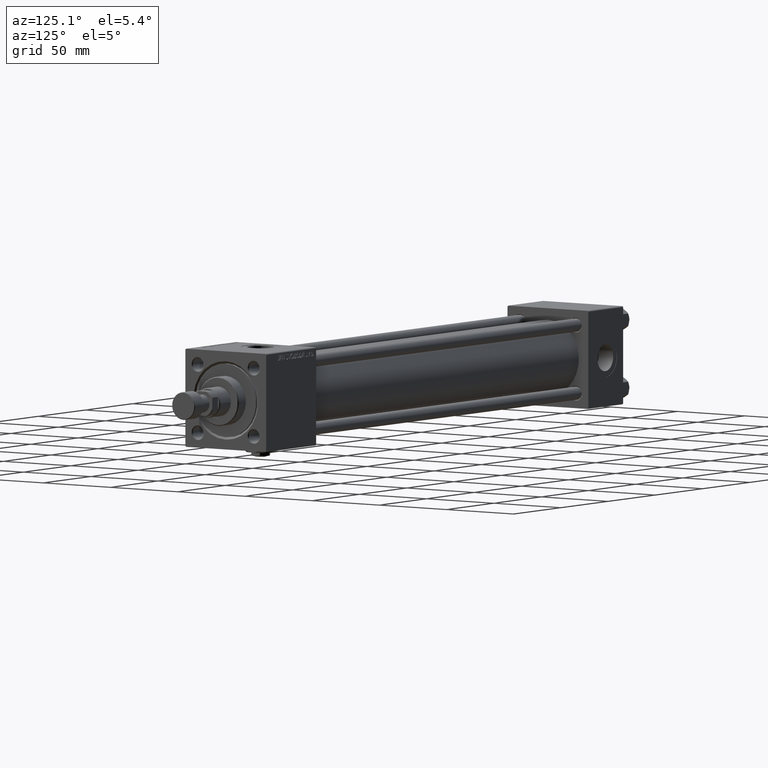
[diagram: clean part render]
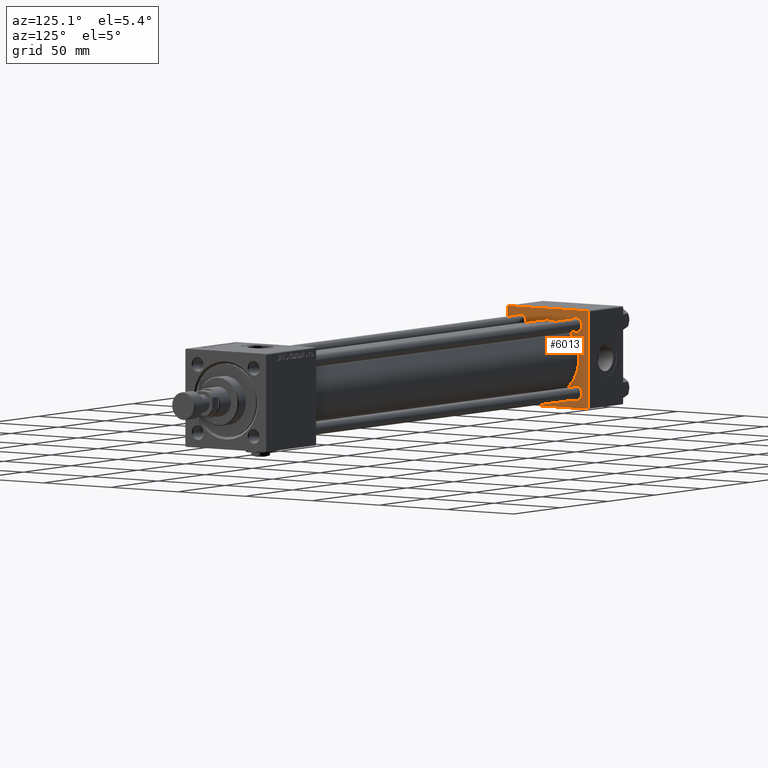
[diagram: same view with one face highlighted and labeled with its STEP entity id]
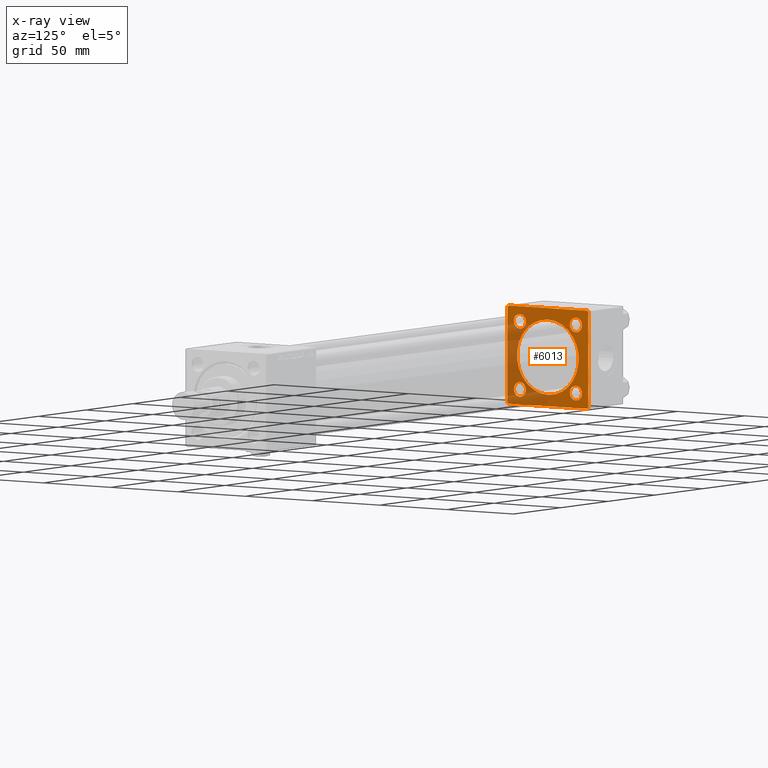
[diagram: x-ray of the same camera — body ghosted, the highlighted face saturated]
A machine part, auxiliary view. The second image highlights one B-rep face of the part: STEP entity #6013.
The next image is the same camera in x-ray: the body ghosted, the highlighted face saturated — about 35% of this face is hidden behind the body in this view.
In plain terms, the highlighted planar face has unit normal (-1, 0, 0).
Its self-contained STEP definition (entity closure, byte-faithful):
#444 = DIRECTION ( 'NONE',  ( -1.000000000000000000, 0.000000000000000000, -0.000000000000000000 ) ) ;
#1006 = AXIS2_PLACEMENT_3D ( 'NONE', #20738, #32433, #48664 ) ;
#1027 = CARTESIAN_POINT ( 'NONE',  ( 37.00000000000000000, -20.84999999999999076, -16.35000000000000142 ) ) ;
#1217 = DIRECTION ( 'NONE',  ( 0.000000000000000000, 0.000000000000000000, 1.000000000000000000 ) ) ;
#1560 = AXIS2_PLACEMENT_3D ( 'NONE', #46065, #18406, #42341 ) ;
#1715 = PLANE ( 'NONE',  #30529 ) ;
#2148 = DIRECTION ( 'NONE',  ( 0.000000000000000000, 0.000000000000000000, 1.000000000000000000 ) ) ;
#2371 = DIRECTION ( 'NONE',  ( -1.000000000000000000, 0.000000000000000000, -0.000000000000000000 ) ) ;
#2449 = CARTESIAN_POINT ( 'NONE',  ( 36.99999999999997868, -2.602085213965210642E-15, 0.000000000000000000 ) ) ;
#2518 = ORIENTED_EDGE ( 'NONE', *, *, #13555, .T. ) ;
#3679 = ORIENTED_EDGE ( 'NONE', *, *, #8488, .T. ) ;
#4054 = CARTESIAN_POINT ( 'NONE',  ( 37.00000000000000000, 29.49999999999997868, -30.00000000000000000 ) ) ;
#4358 = AXIS2_PLACEMENT_3D ( 'NONE', #45398, #444, #1217 ) ;
#5009 = EDGE_LOOP ( 'NONE', ( #19973, #28141 ) ) ;
#5206 = DIRECTION ( 'NONE',  ( 0.000000000000000000, 0.7071067811865474617, -0.7071067811865474617 ) ) ;
#5306 = VECTOR ( 'NONE', #11706, 1000.000000000000000 ) ;
#5619 = DIRECTION ( 'NONE',  ( -1.000000000000000000, 0.000000000000000000, -0.000000000000000000 ) ) ;
#5991 = ORIENTED_EDGE ( 'NONE', *, *, #33801, .T. ) ;
#6008 = DIRECTION ( 'NONE',  ( 0.000000000000000000, -1.000000000000000000, -1.156482317317871725E-16 ) ) ;
#6013 = ADVANCED_FACE ( 'NONE', ( #33916, #31415, #39373, #35400, #25667, #50416 ), #1715, .F. ) ;
#6106 = CARTESIAN_POINT ( 'NONE',  ( 37.00000000000000000, -20.84999999999999076, 20.85000000000000497 ) ) ;
#6268 = CARTESIAN_POINT ( 'NONE',  ( 37.00000000000000000, 29.99999999999999289, 30.00000000000000000 ) ) ;
#6903 = CARTESIAN_POINT ( 'NONE',  ( 37.00000000000000000, -30.00000000000000000, 29.49999999999999289 ) ) ;
#6919 = CIRCLE ( 'NONE', #32444, 23.00000000000000000 ) ;
#6966 = DIRECTION ( 'NONE',  ( -1.000000000000000000, 0.000000000000000000, -0.000000000000000000 ) ) ;
#7194 = CARTESIAN_POINT ( 'NONE',  ( 37.00000000000000000, -30.00000000000000000, 29.99999999999999289 ) ) ;
#7414 = EDGE_LOOP ( 'NONE', ( #26632, #36886 ) ) ;
#7709 = CIRCLE ( 'NONE', #4358, 4.500000000000003553 ) ;
#8299 = DIRECTION ( 'NONE',  ( 0.000000000000000000, -0.7071067811865474617, 0.7071067811865474617 ) ) ;
#8449 = ORIENTED_EDGE ( 'NONE', *, *, #39105, .T. ) ;
#8488 = EDGE_CURVE ( 'NONE', #14433, #33870, #22108, .T. ) ;
#8612 = AXIS2_PLACEMENT_3D ( 'NONE', #39142, #6966, #30665 ) ;
#9004 = ORIENTED_EDGE ( 'NONE', *, *, #22040, .T. ) ;
#9707 = DIRECTION ( 'NONE',  ( -0.000000000000000000, 0.000000000000000000, 1.000000000000000000 ) ) ;
#10103 = DIRECTION ( 'NONE',  ( 0.000000000000000000, 0.000000000000000000, -1.000000000000000000 ) ) ;
#10207 = AXIS2_PLACEMENT_3D ( 'NONE', #22382, #5619, #2148 ) ;
#10376 = EDGE_CURVE ( 'NONE', #32025, #13772, #45530, .T. ) ;
#10389 = CIRCLE ( 'NONE', #16342, 4.500000000000003553 ) ;
#10609 = EDGE_CURVE ( 'NONE', #30649, #16083, #7709, .T. ) ;
#10693 = DIRECTION ( 'NONE',  ( 1.000000000000000000, -0.000000000000000000, 0.000000000000000000 ) ) ;
#10907 = DIRECTION ( 'NONE',  ( 0.000000000000000000, 0.000000000000000000, 1.000000000000000000 ) ) ;
#11095 = DIRECTION ( 'NONE',  ( 0.000000000000000000, 0.000000000000000000, 1.000000000000000000 ) ) ;
#11169 = DIRECTION ( 'NONE',  ( -1.000000000000000000, 0.000000000000000000, -0.000000000000000000 ) ) ;
#11560 = EDGE_CURVE ( 'NONE', #18142, #21169, #37554, .T. ) ;
#11706 = DIRECTION ( 'NONE',  ( 0.000000000000000000, 0.000000000000000000, -1.000000000000000000 ) ) ;
#11968 = LINE ( 'NONE', #7194, #5306 ) ;
#12007 = VECTOR ( 'NONE', #5206, 1000.000000000000114 ) ;
#12275 = DIRECTION ( 'NONE',  ( 0.000000000000000000, -1.000000000000000000, -1.156482317317871725E-16 ) ) ;
#12541 = ORIENTED_EDGE ( 'NONE', *, *, #28233, .T. ) ;
#12821 = CARTESIAN_POINT ( 'NONE',  ( 37.00000000000000000, -30.00000000000000000, -29.50000000000001776 ) ) ;
#12904 = EDGE_CURVE ( 'NONE', #20232, #32478, #10389, .T. ) ;
#13323 = DIRECTION ( 'NONE',  ( -0.000000000000000000, 0.7071067811865574537, 0.7071067811865376918 ) ) ;
#13555 = EDGE_CURVE ( 'NONE', #18826, #31233, #11968, .T. ) ;
#13772 = VERTEX_POINT ( 'NONE', #26582 ) ;
#13788 = EDGE_LOOP ( 'NONE', ( #28900, #3679 ) ) ;
#14271 = CARTESIAN_POINT ( 'NONE',  ( 37.00000000000000000, -20.84999999999999076, 16.35000000000000142 ) ) ;
#14433 = VERTEX_POINT ( 'NONE', #42251 ) ;
#14839 = CARTESIAN_POINT ( 'NONE',  ( 37.00000000000000000, -20.84999999999999076, -20.85000000000000497 ) ) ;
#15009 = ORIENTED_EDGE ( 'NONE', *, *, #10376, .F. ) ;
#16083 = VERTEX_POINT ( 'NONE', #25645 ) ;
#16342 = AXIS2_PLACEMENT_3D ( 'NONE', #6106, #2371, #22608 ) ;
#17952 = CARTESIAN_POINT ( 'NONE',  ( 37.00000000000000000, 29.49999999999999289, 30.00000000000000000 ) ) ;
#18142 = VERTEX_POINT ( 'NONE', #51982 ) ;
#18406 = DIRECTION ( 'NONE',  ( 1.000000000000000000, -0.000000000000000000, 0.000000000000000000 ) ) ;
#18474 = EDGE_CURVE ( 'NONE', #16083, #30649, #31542, .T. ) ;
#18826 = VERTEX_POINT ( 'NONE', #6903 ) ;
#19182 = DIRECTION ( 'NONE',  ( -1.000000000000000000, 0.000000000000000000, -0.000000000000000000 ) ) ;
#19725 = EDGE_CURVE ( 'NONE', #33870, #14433, #23935, .T. ) ;
#19973 = ORIENTED_EDGE ( 'NONE', *, *, #42138, .F. ) ;
#20232 = VERTEX_POINT ( 'NONE', #14271 ) ;
#20434 = VERTEX_POINT ( 'NONE', #31168 ) ;
#20738 = CARTESIAN_POINT ( 'NONE',  ( 37.00000000000000000, 20.84999999999999787, -20.85000000000000142 ) ) ;
#20869 = VECTOR ( 'NONE', #25709, 1000.000000000000114 ) ;
#20908 = ORIENTED_EDGE ( 'NONE', *, *, #46576, .T. ) ;
#21169 = VERTEX_POINT ( 'NONE', #17952 ) ;
#21267 = AXIS2_PLACEMENT_3D ( 'NONE', #23173, #19182, #35404 ) ;
#21702 = VERTEX_POINT ( 'NONE', #27687 ) ;
#22040 = EDGE_CURVE ( 'NONE', #31233, #13772, #33407, .T. ) ;
#22108 = CIRCLE ( 'NONE', #10207, 4.500000000000003553 ) ;
#22382 = CARTESIAN_POINT ( 'NONE',  ( 37.00000000000000000, 20.84999999999999787, -20.85000000000000142 ) ) ;
#22416 = EDGE_CURVE ( 'NONE', #21702, #38694, #6919, .T. ) ;
#22608 = DIRECTION ( 'NONE',  ( 0.000000000000000000, 0.000000000000000000, 1.000000000000000000 ) ) ;
#22704 = AXIS2_PLACEMENT_3D ( 'NONE', #14839, #43289, #11095 ) ;
#23173 = CARTESIAN_POINT ( 'NONE',  ( 37.00000000000000000, -20.84999999999999076, 20.85000000000000497 ) ) ;
#23935 = CIRCLE ( 'NONE', #1006, 4.500000000000003553 ) ;
#24491 = CIRCLE ( 'NONE', #1560, 23.00000000000000000 ) ;
#25645 = CARTESIAN_POINT ( 'NONE',  ( 37.00000000000000000, 20.84999999999999787, 16.34999999999999787 ) ) ;
#25667 = FACE_BOUND ( 'NONE', #5009, .T. ) ;
#25709 = DIRECTION ( 'NONE',  ( -0.000000000000000000, -0.7071067811865474617, -0.7071067811865474617 ) ) ;
#26105 = CIRCLE ( 'NONE', #22704, 4.500000000000003553 ) ;
#26582 = CARTESIAN_POINT ( 'NONE',  ( 37.00000000000000000, -29.50000000000000000, -30.00000000000000711 ) ) ;
#26632 = ORIENTED_EDGE ( 'NONE', *, *, #12904, .T. ) ;
#26993 = CARTESIAN_POINT ( 'NONE',  ( 37.00000000000000000, 20.84999999999999787, -25.35000000000000497 ) ) ;
#27095 = CARTESIAN_POINT ( 'NONE',  ( 37.00000000000000000, 29.99999999999999289, 30.00000000000000000 ) ) ;
#27275 = VECTOR ( 'NONE', #12275, 1000.000000000000000 ) ;
#27314 = VECTOR ( 'NONE', #8299, 1000.000000000000114 ) ;
#27419 = CARTESIAN_POINT ( 'NONE',  ( 37.00000000000000000, 0.000000000000000000, 0.000000000000000000 ) ) ;
#27581 = EDGE_LOOP ( 'NONE', ( #15009, #20908, #35876, #35607, #5991, #47190, #2518, #9004 ) ) ;
#27687 = CARTESIAN_POINT ( 'NONE',  ( 36.99999999999997868, 2.146024240737016609E-16, -23.00000000000000000 ) ) ;
#28141 = ORIENTED_EDGE ( 'NONE', *, *, #22416, .F. ) ;
#28233 = EDGE_CURVE ( 'NONE', #32825, #40246, #52148, .T. ) ;
#28541 = EDGE_LOOP ( 'NONE', ( #12541, #8449 ) ) ;
#28900 = ORIENTED_EDGE ( 'NONE', *, *, #19725, .T. ) ;
#29226 = AXIS2_PLACEMENT_3D ( 'NONE', #47098, #11169, #10907 ) ;
#30529 = AXIS2_PLACEMENT_3D ( 'NONE', #27419, #51365, #9707 ) ;
#30632 = ORIENTED_EDGE ( 'NONE', *, *, #10609, .T. ) ;
#30649 = VERTEX_POINT ( 'NONE', #31596 ) ;
#30665 = DIRECTION ( 'NONE',  ( 0.000000000000000000, 0.000000000000000000, 1.000000000000000000 ) ) ;
#31168 = CARTESIAN_POINT ( 'NONE',  ( 37.00000000000000000, 29.99999999999999289, -29.50000000000000000 ) ) ;
#31233 = VERTEX_POINT ( 'NONE', #12821 ) ;
#31342 = CARTESIAN_POINT ( 'NONE',  ( 37.00000000000000000, -20.84999999999999076, 25.35000000000000853 ) ) ;
#31415 = FACE_BOUND ( 'NONE', #13788, .T. ) ;
#31542 = CIRCLE ( 'NONE', #8612, 4.500000000000003553 ) ;
#31596 = CARTESIAN_POINT ( 'NONE',  ( 37.00000000000000000, 20.84999999999999787, 25.35000000000000497 ) ) ;
#32025 = VERTEX_POINT ( 'NONE', #4054 ) ;
#32433 = DIRECTION ( 'NONE',  ( -1.000000000000000000, 0.000000000000000000, -0.000000000000000000 ) ) ;
#32444 = AXIS2_PLACEMENT_3D ( 'NONE', #2449, #10693, #51128 ) ;
#32478 = VERTEX_POINT ( 'NONE', #31342 ) ;
#32825 = VERTEX_POINT ( 'NONE', #34502 ) ;
#32965 = CARTESIAN_POINT ( 'NONE',  ( 37.00000000000000000, -29.49999999999998579, 29.99999999999999289 ) ) ;
#33407 = LINE ( 'NONE', #37647, #12007 ) ;
#33801 = EDGE_CURVE ( 'NONE', #21169, #47558, #33938, .T. ) ;
#33870 = VERTEX_POINT ( 'NONE', #26993 ) ;
#33916 = FACE_BOUND ( 'NONE', #28541, .T. ) ;
#33938 = LINE ( 'NONE', #6268, #38745 ) ;
#34502 = CARTESIAN_POINT ( 'NONE',  ( 37.00000000000000000, -20.84999999999999076, -25.35000000000000853 ) ) ;
#35400 = FACE_BOUND ( 'NONE', #46361, .T. ) ;
#35404 = DIRECTION ( 'NONE',  ( 0.000000000000000000, 0.000000000000000000, 1.000000000000000000 ) ) ;
#35607 = ORIENTED_EDGE ( 'NONE', *, *, #11560, .T. ) ;
#35876 = ORIENTED_EDGE ( 'NONE', *, *, #50688, .F. ) ;
#36069 = EDGE_CURVE ( 'NONE', #47558, #18826, #38205, .T. ) ;
#36886 = ORIENTED_EDGE ( 'NONE', *, *, #42858, .T. ) ;
#37554 = LINE ( 'NONE', #48741, #27314 ) ;
#37647 = CARTESIAN_POINT ( 'NONE',  ( 37.00000000000000000, -29.50000000000001066, -30.00000000000000711 ) ) ;
#38205 = LINE ( 'NONE', #45668, #20869 ) ;
#38291 = LINE ( 'NONE', #27095, #50586 ) ;
#38694 = VERTEX_POINT ( 'NONE', #52256 ) ;
#38745 = VECTOR ( 'NONE', #6008, 1000.000000000000000 ) ;
#39105 = EDGE_CURVE ( 'NONE', #40246, #32825, #26105, .T. ) ;
#39142 = CARTESIAN_POINT ( 'NONE',  ( 37.00000000000000000, 20.84999999999999787, 20.85000000000000142 ) ) ;
#39373 = FACE_BOUND ( 'NONE', #7414, .T. ) ;
#39905 = CIRCLE ( 'NONE', #21267, 4.500000000000003553 ) ;
#40211 = VECTOR ( 'NONE', #13323, 999.9999999999998863 ) ;
#40246 = VERTEX_POINT ( 'NONE', #1027 ) ;
#41567 = ORIENTED_EDGE ( 'NONE', *, *, #18474, .T. ) ;
#42138 = EDGE_CURVE ( 'NONE', #38694, #21702, #24491, .T. ) ;
#42251 = CARTESIAN_POINT ( 'NONE',  ( 37.00000000000000000, 20.84999999999999787, -16.34999999999999787 ) ) ;
#42341 = DIRECTION ( 'NONE',  ( 0.000000000000000000, 0.000000000000000000, 1.000000000000000000 ) ) ;
#42858 = EDGE_CURVE ( 'NONE', #32478, #20232, #39905, .T. ) ;
#43289 = DIRECTION ( 'NONE',  ( -1.000000000000000000, 0.000000000000000000, -0.000000000000000000 ) ) ;
#44702 = CARTESIAN_POINT ( 'NONE',  ( 37.00000000000000000, 29.99999999999999289, -29.50000000000000000 ) ) ;
#44725 = CARTESIAN_POINT ( 'NONE',  ( 37.00000000000000000, 29.99999999999999289, -30.00000000000000000 ) ) ;
#44971 = LINE ( 'NONE', #44702, #40211 ) ;
#45398 = CARTESIAN_POINT ( 'NONE',  ( 37.00000000000000000, 20.84999999999999787, 20.85000000000000142 ) ) ;
#45530 = LINE ( 'NONE', #44725, #27275 ) ;
#45668 = CARTESIAN_POINT ( 'NONE',  ( 37.00000000000000000, -30.00000000000000000, 29.49999999999999289 ) ) ;
#46065 = CARTESIAN_POINT ( 'NONE',  ( 36.99999999999997868, -2.602085213965210642E-15, 0.000000000000000000 ) ) ;
#46361 = EDGE_LOOP ( 'NONE', ( #41567, #30632 ) ) ;
#46576 = EDGE_CURVE ( 'NONE', #32025, #20434, #44971, .T. ) ;
#47098 = CARTESIAN_POINT ( 'NONE',  ( 37.00000000000000000, -20.84999999999999076, -20.85000000000000497 ) ) ;
#47190 = ORIENTED_EDGE ( 'NONE', *, *, #36069, .T. ) ;
#47558 = VERTEX_POINT ( 'NONE', #32965 ) ;
#48664 = DIRECTION ( 'NONE',  ( 0.000000000000000000, 0.000000000000000000, 1.000000000000000000 ) ) ;
#48741 = CARTESIAN_POINT ( 'NONE',  ( 37.00000000000000000, 29.49999999999999289, 30.00000000000000000 ) ) ;
#50416 = FACE_OUTER_BOUND ( 'NONE', #27581, .T. ) ;
#50586 = VECTOR ( 'NONE', #10103, 1000.000000000000000 ) ;
#50688 = EDGE_CURVE ( 'NONE', #18142, #20434, #38291, .T. ) ;
#51128 = DIRECTION ( 'NONE',  ( 0.000000000000000000, 0.000000000000000000, 1.000000000000000000 ) ) ;
#51365 = DIRECTION ( 'NONE',  ( -1.000000000000000000, 0.000000000000000000, -0.000000000000000000 ) ) ;
#51982 = CARTESIAN_POINT ( 'NONE',  ( 37.00000000000000000, 29.99999999999999289, 29.50000000000000000 ) ) ;
#52148 = CIRCLE ( 'NONE', #29226, 4.500000000000003553 ) ;
#52256 = CARTESIAN_POINT ( 'NONE',  ( 36.99999999999997868, -2.602085213965210642E-15, 23.00000000000000000 ) ) ;